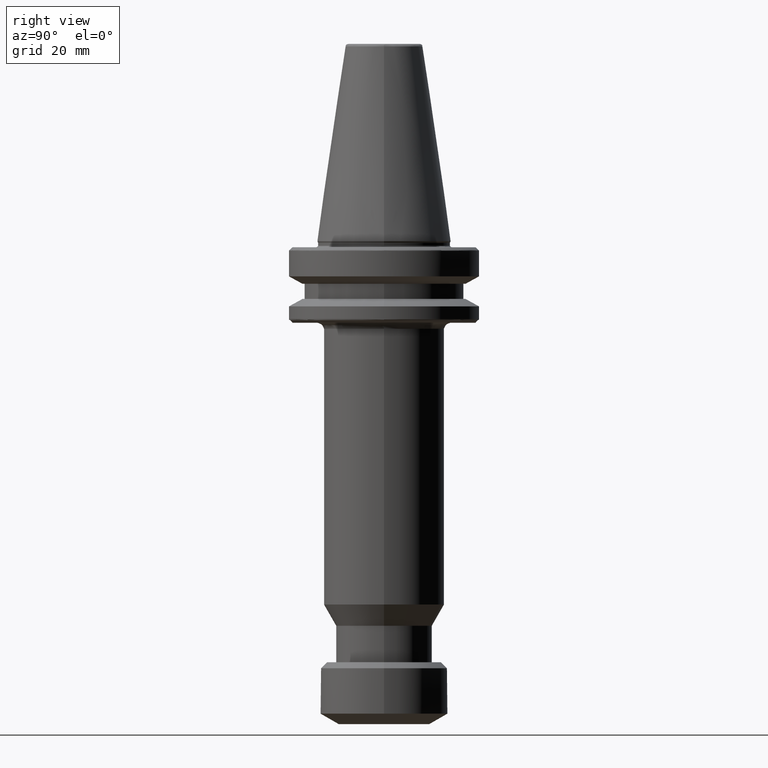
[diagram: clean part render]
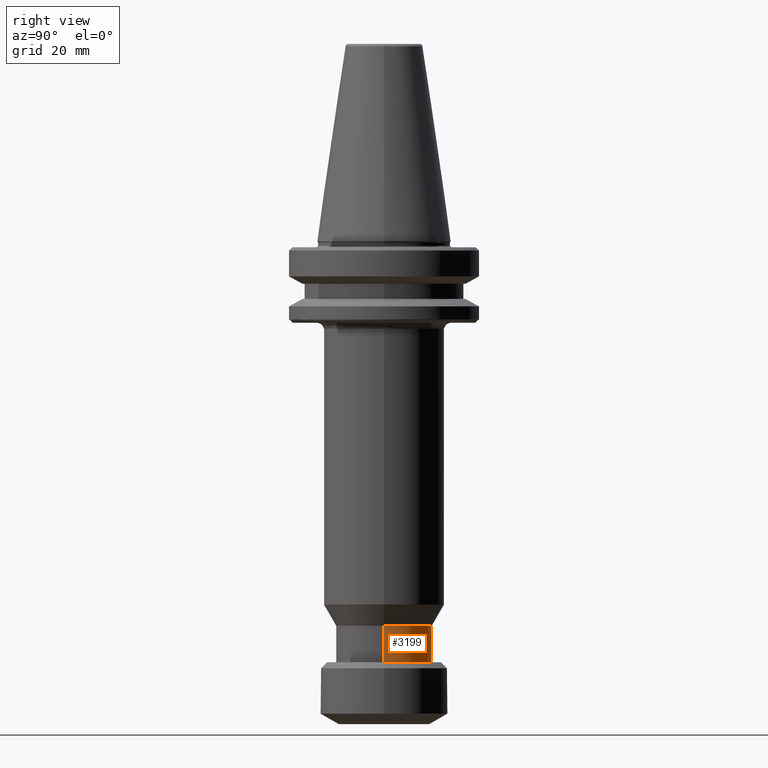
[diagram: same view with one face highlighted and labeled with its STEP entity id]
A machine part, right view. The second image highlights one B-rep face of the part: STEP entity #3199.
In plain terms, the highlighted cylindrical surface (partial cylindrical patch) has radius 15.95 mm, axis along (0, -0, 1).
Its self-contained STEP definition (entity closure, byte-faithful):
#12 = DIRECTION ( 'NONE',  ( 0.0000000000000000000, -0.0000000000000000000, 1.000000000000000000 ) ) ;
#92 = ORIENTED_EDGE ( 'NONE', *, *, #989, .F. ) ;
#173 = CIRCLE ( 'NONE', #2236, 15.95000000000000300 ) ;
#387 = VECTOR ( 'NONE', #2169, 1000.000000000000000 ) ;
#421 = EDGE_CURVE ( 'NONE', #767, #1276, #2415, .T. ) ;
#475 = CARTESIAN_POINT ( 'NONE',  ( 15.95000000000000300, 0.0000000000000000000, -139.5000000000000000 ) ) ;
#542 = CARTESIAN_POINT ( 'NONE',  ( 15.95000000000000300, 0.0000000000000000000, -139.5000000000000000 ) ) ;
#594 = CYLINDRICAL_SURFACE ( 'NONE', #3197, 15.95000000000000300 ) ;
#612 = CARTESIAN_POINT ( 'NONE',  ( -15.95000000000000300, 1.953311644640028500E-015, -139.5000000000000000 ) ) ;
#767 = VERTEX_POINT ( 'NONE', #542 ) ;
#799 = VERTEX_POINT ( 'NONE', #612 ) ;
#862 = CARTESIAN_POINT ( 'NONE',  ( 0.0000000000000000000, 0.0000000000000000000, -127.4000000000000200 ) ) ;
#865 = DIRECTION ( 'NONE',  ( 0.0000000000000000000, 0.0000000000000000000, 1.000000000000000000 ) ) ;
#945 = DIRECTION ( 'NONE',  ( 1.000000000000000000, 0.0000000000000000000, 0.0000000000000000000 ) ) ;
#964 = EDGE_LOOP ( 'NONE', ( #2277, #3303, #92, #3253 ) ) ;
#989 = EDGE_CURVE ( 'NONE', #1276, #2438, #2192, .T. ) ;
#1134 = FACE_OUTER_BOUND ( 'NONE', #964, .T. ) ;
#1182 = CARTESIAN_POINT ( 'NONE',  ( 15.95000000000000300, 0.0000000000000000000, -127.4000000000000200 ) ) ;
#1276 = VERTEX_POINT ( 'NONE', #1182 ) ;
#1548 = AXIS2_PLACEMENT_3D ( 'NONE', #862, #865, #945 ) ;
#2011 = LINE ( 'NONE', #2198, #387 ) ;
#2169 = DIRECTION ( 'NONE',  ( 0.0000000000000000000, -0.0000000000000000000, 1.000000000000000000 ) ) ;
#2192 = CIRCLE ( 'NONE', #1548, 15.95000000000000300 ) ;
#2198 = CARTESIAN_POINT ( 'NONE',  ( -15.95000000000000300, 1.953311644640028500E-015, -139.5000000000000000 ) ) ;
#2199 = EDGE_CURVE ( 'NONE', #767, #799, #173, .T. ) ;
#2236 = AXIS2_PLACEMENT_3D ( 'NONE', #2841, #2834, #2828 ) ;
#2277 = ORIENTED_EDGE ( 'NONE', *, *, #2199, .T. ) ;
#2321 = DIRECTION ( 'NONE',  ( 1.000000000000000000, 0.0000000000000000000, 0.0000000000000000000 ) ) ;
#2340 = CARTESIAN_POINT ( 'NONE',  ( 0.0000000000000000000, 0.0000000000000000000, -139.5000000000000000 ) ) ;
#2379 = DIRECTION ( 'NONE',  ( 0.0000000000000000000, -0.0000000000000000000, 1.000000000000000000 ) ) ;
#2415 = LINE ( 'NONE', #475, #2498 ) ;
#2438 = VERTEX_POINT ( 'NONE', #2460 ) ;
#2460 = CARTESIAN_POINT ( 'NONE',  ( -15.95000000000000300, 2.201302621467367300E-015, -127.4000000000000200 ) ) ;
#2498 = VECTOR ( 'NONE', #12, 1000.000000000000000 ) ;
#2828 = DIRECTION ( 'NONE',  ( 1.000000000000000000, 0.0000000000000000000, 0.0000000000000000000 ) ) ;
#2834 = DIRECTION ( 'NONE',  ( 0.0000000000000000000, -0.0000000000000000000, 1.000000000000000000 ) ) ;
#2841 = CARTESIAN_POINT ( 'NONE',  ( 0.0000000000000000000, 0.0000000000000000000, -139.5000000000000000 ) ) ;
#3197 = AXIS2_PLACEMENT_3D ( 'NONE', #2340, #2379, #2321 ) ;
#3199 = ADVANCED_FACE ( 'NONE', ( #1134 ), #594, .T. ) ;
#3253 = ORIENTED_EDGE ( 'NONE', *, *, #421, .F. ) ;
#3291 = EDGE_CURVE ( 'NONE', #799, #2438, #2011, .T. ) ;
#3303 = ORIENTED_EDGE ( 'NONE', *, *, #3291, .T. ) ;